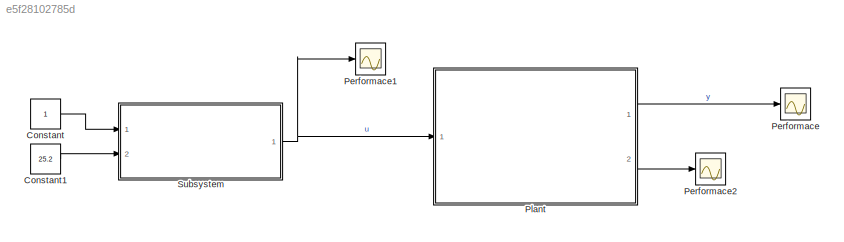
MODEL slx_e5f28102785d
KIND model
CONFIG AbsTol = auto
CONFIG EnableMultiTasking = off
CONFIG FixedStep = auto
CONFIG MaxStep = auto
CONFIG MinStep = auto
CONFIG RelTol = 1e-3
CONFIG SampleTimeConstraint = Unconstrained
CONFIG Solver = VariableStepAuto
CONFIG SolverName = VariableStepAuto
CONFIG StartTime = 0.0
CONFIG StopTime = 30
BLOCK [Constant] Constant
BLOCK [Constant] Constant1
  Value = 25.2
BLOCK [Scope] Performace
  Floating = off
  NumInputPorts = 1
  Ports = [1]
  ScopeSpecificationString = Simulink.scopes.TimeScopeBlockCfg('CurrentConfiguration', extmgr.ConfigurationSet(extmgr.Configuration('Core','General UI',true),extmgr.Configuration('Core','Source UI',true),extmgr.Configuration('Sources','WiredSimulink',true),extmgr.Configuration('Visuals','Time Domain',true,'SerializedDisplays',{struct('MinYLimReal','0','MaxYLimReal','10000','YLabelReal','','MinYLimMag','4964.22545','MaxYLimMag...<+1535ch>
BLOCK [Scope] Performace1
  Floating = off
  NumInputPorts = 1
  Ports = [1]
  ScopeSpecificationString = Simulink.scopes.TimeScopeBlockCfg('CurrentConfiguration', extmgr.ConfigurationSet(extmgr.Configuration('Core','General UI',true),extmgr.Configuration('Core','Source UI',true),extmgr.Configuration('Sources','WiredSimulink',true,'DataLoggingVariableName','ScopeData1'),extmgr.Configuration('Visuals','Time Domain',true,'SerializedDisplays',{struct('MinYLimReal','0','MaxYLimReal','26','YLabelReal','','...<+1868ch>
BLOCK [Scope] Performace2
  Floating = off
  NumInputPorts = 1
  Ports = [1]
  ScopeSpecificationString = Simulink.scopes.TimeScopeBlockCfg('CurrentConfiguration', extmgr.ConfigurationSet(extmgr.Configuration('Core','General UI',true),extmgr.Configuration('Core','Source UI',true),extmgr.Configuration('Sources','WiredSimulink',true,'DataLoggingVariableName','ScopeData2'),extmgr.Configuration('Visuals','Time Domain',true,'SerializedDisplays',{struct('MinYLimReal','-100','MaxYLimReal','0','YLabelReal',''...<+1578ch>
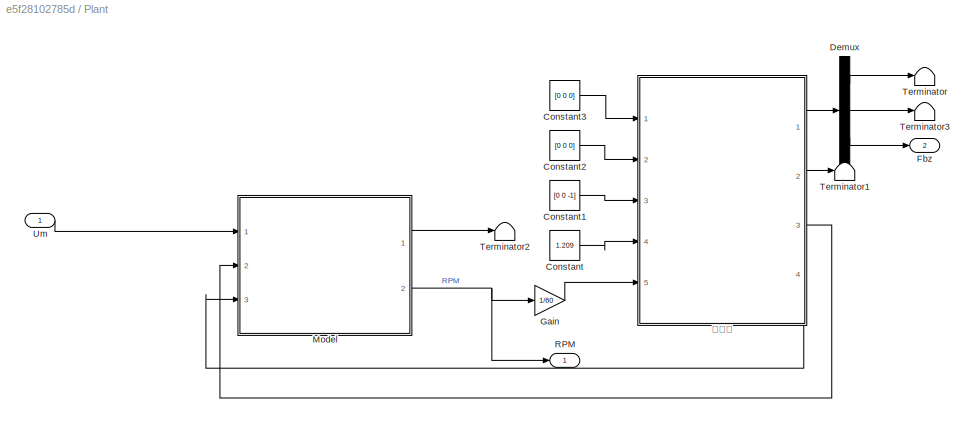
BLOCK [SubSystem] Plant
  Ports = [1, 2]
  RequestExecContextInheritance = off
BLOCK [Constant] Plant/Constant
  SampleTime = 0.02
  Value = 1.209
BLOCK [Constant] Plant/Constant1
  SampleTime = 0.02
  Value = [0 0 -1]
BLOCK [Constant] Plant/Constant2
  SampleTime = 0.02
  Value = [0 0 0]
BLOCK [Constant] Plant/Constant3
  SampleTime = 0.02
  Value = [0 0 0]
BLOCK [Demux] Plant/Demux
  DisplayOption = bar
  Outputs = 3
  Ports = [1, 3]
BLOCK [Outport] Plant/Fbz 
  IconDisplay = Port number
  Port = 2
BLOCK [Gain] Plant/Gain
  Gain = 1/60
  OutDataTypeStr = Inherit: Inherit via internal rule
  ParamDataTypeStr = Inherit: Inherit via internal rule
  SaturateOnIntegerOverflow = off
BLOCK [ModelReference] Plant/Model
  ModelNameDialog = TMU5KV400.slx
  ModelReferenceVersion = 1.25
  Ports = [3, 2]
BLOCK [Outport] Plant/RPM
  IconDisplay = Port number
BLOCK [Terminator] Plant/Terminator
BLOCK [Terminator] Plant/Terminator1
BLOCK [Terminator] Plant/Terminator2
BLOCK [Terminator] Plant/Terminator3
BLOCK [Inport] Plant/Um
  IconDisplay = Port number
BLOCK [ModelReference] Plant/螺旋桨
  ModelNameDialog = TM1654P
  ModelReferenceVersion = 1.90
  Ports = [5, 4]
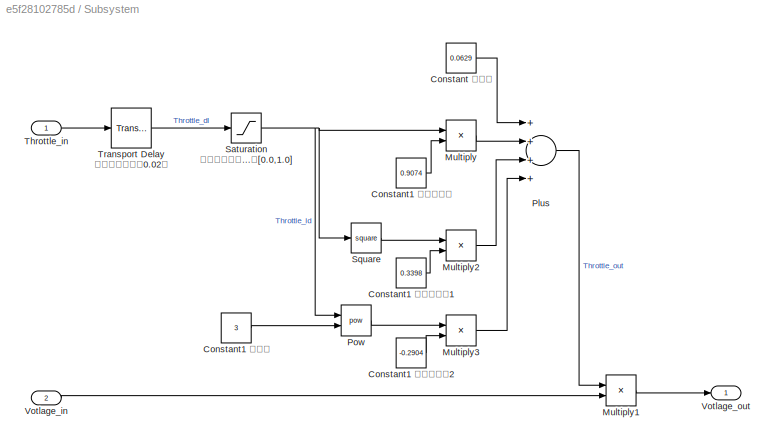
BLOCK [SubSystem] Subsystem
  Ports = [2, 1]
  RequestExecContextInheritance = off
BLOCK [Constant] Subsystem/Constant 常数项
  Value = 0.0629
BLOCK [Constant] Subsystem/Constant1 一次项系数
  Value = 0.9074
BLOCK [Constant] Subsystem/Constant1 三次项系数2
  Value = -0.2904
BLOCK [Constant] Subsystem/Constant1 二次项系数1
  Value = 0.3398
BLOCK [Constant] Subsystem/Constant1 幂级数
  Value = 3
BLOCK [Product] Subsystem/Multiply
  InputSameDT = off
  OutDataTypeStr = Inherit: Inherit via internal rule
  Ports = [2, 1]
  RndMeth = Floor
  SaturateOnIntegerOverflow = off
BLOCK [Product] Subsystem/Multiply1
  InputSameDT = off
  OutDataTypeStr = Inherit: Inherit via internal rule
  Ports = [2, 1]
  RndMeth = Floor
  SaturateOnIntegerOverflow = off
BLOCK [Product] Subsystem/Multiply2
  InputSameDT = off
  OutDataTypeStr = Inherit: Inherit via internal rule
  Ports = [2, 1]
  RndMeth = Floor
  SaturateOnIntegerOverflow = off
BLOCK [Product] Subsystem/Multiply3
  InputSameDT = off
  OutDataTypeStr = Inherit: Inherit via internal rule
  Ports = [2, 1]
  RndMeth = Floor
  SaturateOnIntegerOverflow = off
BLOCK [Sum] Subsystem/Plus
  InputSameDT = off
  Inputs = ++++
  OutDataTypeStr = Inherit: Inherit via internal rule
  Ports = [4, 1]
  SaturateOnIntegerOverflow = off
BLOCK [Math] Subsystem/Pow
  Operator = pow
  Ports = [2, 1]
  RndMeth = Zero
BLOCK [Saturate] Subsystem/Saturation 限制油门最大最小值[0.0,1.0]
  InputPortMap = u0
  LowerLimit = 0.0
  Ports = [1, 1]
  UpperLimit = 1.0
BLOCK [Math] Subsystem/Square
  Operator = square
  Ports = [1, 1]
BLOCK [Inport] Subsystem/Throttle_in
  IconDisplay = Port number
  PortDimensions = 1
BLOCK [TransportDelay] Subsystem/Transport Delay 模拟电调纯延时0.02秒
  DelayTime = 0.02
  Ports = [1, 1]
BLOCK [Inport] Subsystem/Votlage_in
  IconDisplay = Port number
  Port = 2
BLOCK [Outport] Subsystem/Votlage_out
  IconDisplay = Port number
LINE Constant1:1 -> Subsystem:2
LINE Constant:1 -> Subsystem:1
LINE Plant/Constant1:1 -> Plant/螺旋桨:3
LINE Plant/Constant2:1 -> Plant/螺旋桨:2
LINE Plant/Constant3:1 -> Plant/螺旋桨:1
LINE Plant/Constant:1 -> Plant/螺旋桨:4
LINE Plant/Demux:1 -> Plant/Terminator:1
LINE Plant/Demux:2 -> Plant/Terminator3:1
LINE Plant/Demux:3 -> Plant/Fbz :1
LINE Plant/Gain:1 -> Plant/螺旋桨:5
LINE Plant/Model:1 -> Plant/Terminator2:1
NET Plant/Model:2 -> Plant/Gain:1, Plant/RPM:1
LINE Plant/Um:1 -> Plant/Model:1
LINE Plant/螺旋桨:1 -> Plant/Demux:1
LINE Plant/螺旋桨:2 -> Plant/Terminator1:1
LINE Plant/螺旋桨:3 -> Plant/Model:2
LINE Plant/螺旋桨:4 -> Plant/Model:3
LINE Plant:1 -> Performace:1
LINE Plant:2 -> Performace2:1
LINE Subsystem/Constant 常数项:1 -> Subsystem/Plus:1
LINE Subsystem/Constant1 一次项系数:1 -> Subsystem/Multiply:2
LINE Subsystem/Constant1 三次项系数2:1 -> Subsystem/Multiply3:2
LINE Subsystem/Constant1 二次项系数1:1 -> Subsystem/Multiply2:2
LINE Subsystem/Constant1 幂级数:1 -> Subsystem/Pow:2
LINE Subsystem/Multiply1:1 -> Subsystem/Votlage_out:1
LINE Subsystem/Multiply2:1 -> Subsystem/Plus:3
LINE Subsystem/Multiply3:1 -> Subsystem/Plus:4
LINE Subsystem/Multiply:1 -> Subsystem/Plus:2
LINE Subsystem/Plus:1 -> Subsystem/Multiply1:1
LINE Subsystem/Pow:1 -> Subsystem/Multiply3:1
NET Subsystem/Saturation 限制油门最大最小值[0.0,1.0]:1 -> Subsystem/Multiply:1, Subsystem/Pow:1, Subsystem/Square:1
LINE Subsystem/Square:1 -> Subsystem/Multiply2:1
LINE Subsystem/Throttle_in:1 -> Subsystem/Transport Delay 模拟电调纯延时0.02秒:1
LINE Subsystem/Transport Delay 模拟电调纯延时0.02秒:1 -> Subsystem/Saturation 限制油门最大最小值[0.0,1.0]:1
LINE Subsystem/Votlage_in:1 -> Subsystem/Multiply1:2
NET Subsystem:1 -> Performace1:1, Plant:1
note: NET lines group one-source signal fan-out (src -> all destinations, sorted); 1:1 wires keep LINE
